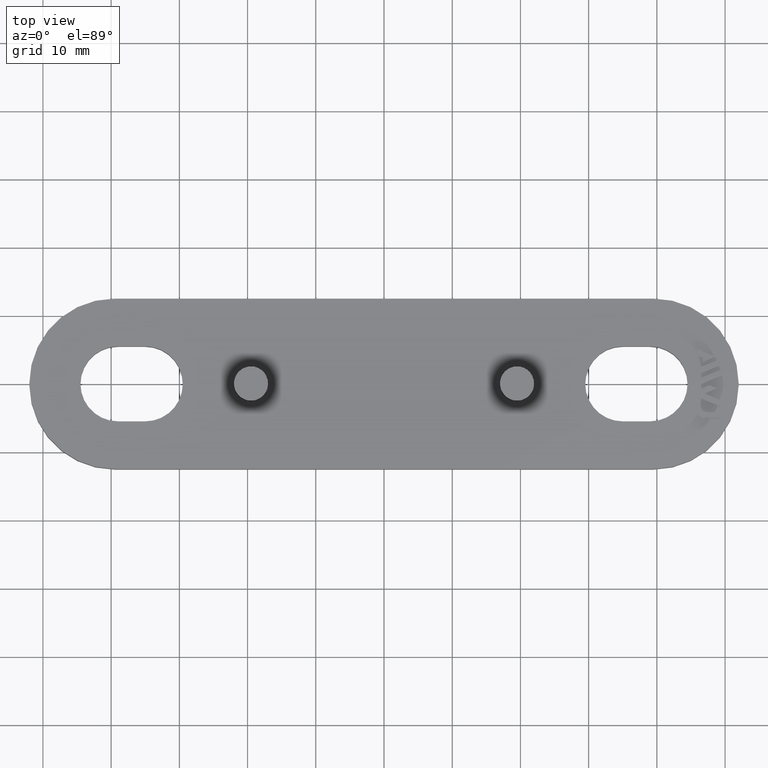
[diagram: clean part render]
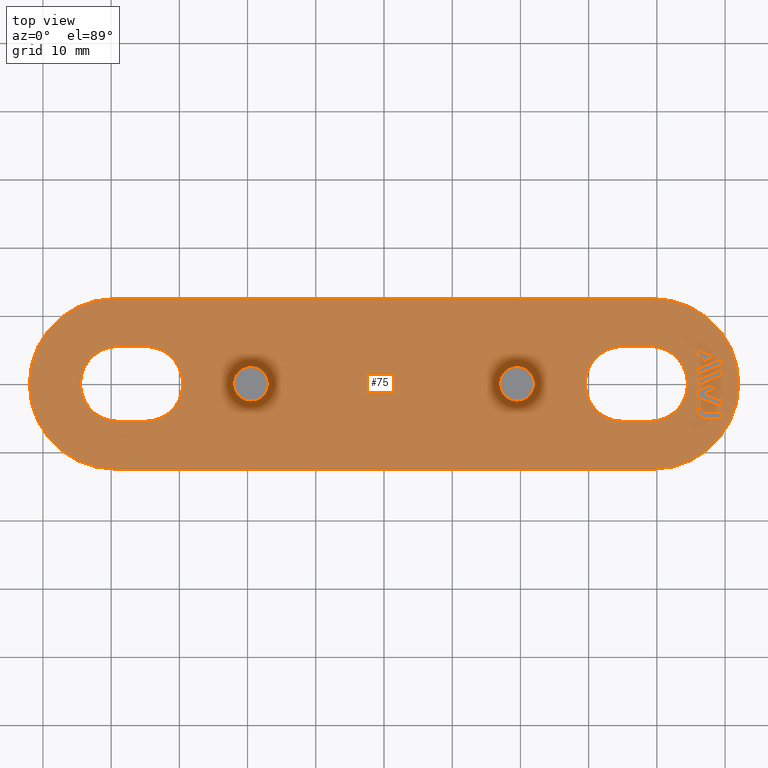
[diagram: same view with one face highlighted and labeled with its STEP entity id]
A machine part, top view. The second image highlights one B-rep face of the part: STEP entity #75.
In plain terms, the highlighted planar face has unit normal (0, -0, -1).
Its self-contained STEP definition (entity closure, byte-faithful):
#75 = ADVANCED_FACE( '', ( #428, #429, #430, #431, #432, #433, #434, #435, #436, #437 ), #438, .F. );
#428 = FACE_BOUND( '', #1194, .T. );
#429 = FACE_BOUND( '', #1195, .T. );
#430 = FACE_BOUND( '', #1196, .T. );
#431 = FACE_OUTER_BOUND( '', #1197, .T. );
#432 = FACE_BOUND( '', #1198, .T. );
#433 = FACE_BOUND( '', #1199, .T. );
#434 = FACE_BOUND( '', #1200, .T. );
#435 = FACE_BOUND( '', #1201, .T. );
#436 = FACE_BOUND( '', #1202, .T. );
#437 = FACE_BOUND( '', #1203, .T. );
#438 = PLANE( '', #1204 );
#1194 = EDGE_LOOP( '', ( #1960, #1961, #1962, #1963, #1964, #1965, #1966 ) );
#1195 = EDGE_LOOP( '', ( #1967, #1968, #1969, #1970 ) );
#1196 = EDGE_LOOP( '', ( #1971, #1972, #1973, #1974, #1975, #1976 ) );
#1197 = EDGE_LOOP( '', ( #1977, #1978, #1979, #1980, #1981, #1982 ) );
#1198 = EDGE_LOOP( '', ( #1983, #1984, #1985, #1986, #1987, #1988 ) );
#1199 = EDGE_LOOP( '', ( #1989 ) );
#1200 = EDGE_LOOP( '', ( #1990 ) );
#1201 = EDGE_LOOP( '', ( #1991, #1992, #1993, #1994, #1995 ) );
#1202 = EDGE_LOOP( '', ( #1996, #1997, #1998, #1999 ) );
#1203 = EDGE_LOOP( '', ( #2000, #2001, #2002, #2003, #2004, #2005, #2006, #2007 ) );
#1204 = AXIS2_PLACEMENT_3D( '', #2008, #2009, #2010 );
#1960 = ORIENTED_EDGE( '', *, *, #4792, .F. );
#1961 = ORIENTED_EDGE( '', *, *, #4793, .F. );
#1962 = ORIENTED_EDGE( '', *, *, #4794, .F. );
#1963 = ORIENTED_EDGE( '', *, *, #4795, .F. );
#1964 = ORIENTED_EDGE( '', *, *, #4796, .F. );
#1965 = ORIENTED_EDGE( '', *, *, #4797, .F. );
#1966 = ORIENTED_EDGE( '', *, *, #4798, .F. );
#1967 = ORIENTED_EDGE( '', *, *, #4799, .F. );
#1968 = ORIENTED_EDGE( '', *, *, #4800, .F. );
#1969 = ORIENTED_EDGE( '', *, *, #4801, .F. );
#1970 = ORIENTED_EDGE( '', *, *, #4802, .F. );
#1971 = ORIENTED_EDGE( '', *, *, #4803, .F. );
#1972 = ORIENTED_EDGE( '', *, *, #4804, .F. );
#1973 = ORIENTED_EDGE( '', *, *, #4805, .F. );
#1974 = ORIENTED_EDGE( '', *, *, #4806, .F. );
#1975 = ORIENTED_EDGE( '', *, *, #4807, .F. );
#1976 = ORIENTED_EDGE( '', *, *, #4808, .F. );
#1977 = ORIENTED_EDGE( '', *, *, #4809, .F. );
#1978 = ORIENTED_EDGE( '', *, *, #4810, .F. );
#1979 = ORIENTED_EDGE( '', *, *, #4811, .F. );
#1980 = ORIENTED_EDGE( '', *, *, #4812, .F. );
#1981 = ORIENTED_EDGE( '', *, *, #4813, .F. );
#1982 = ORIENTED_EDGE( '', *, *, #4814, .F. );
#1983 = ORIENTED_EDGE( '', *, *, #4815, .F. );
#1984 = ORIENTED_EDGE( '', *, *, #4816, .F. );
#1985 = ORIENTED_EDGE( '', *, *, #4817, .F. );
#1986 = ORIENTED_EDGE( '', *, *, #4818, .F. );
#1987 = ORIENTED_EDGE( '', *, *, #4819, .F. );
#1988 = ORIENTED_EDGE( '', *, *, #4820, .F. );
#1989 = ORIENTED_EDGE( '', *, *, #4821, .T. );
#1990 = ORIENTED_EDGE( '', *, *, #4822, .T. );
#1991 = ORIENTED_EDGE( '', *, *, #4823, .F. );
#1992 = ORIENTED_EDGE( '', *, *, #4824, .F. );
#1993 = ORIENTED_EDGE( '', *, *, #4825, .F. );
#1994 = ORIENTED_EDGE( '', *, *, #4826, .F. );
#1995 = ORIENTED_EDGE( '', *, *, #4827, .F. );
#1996 = ORIENTED_EDGE( '', *, *, #4828, .F. );
#1997 = ORIENTED_EDGE( '', *, *, #4829, .F. );
#1998 = ORIENTED_EDGE( '', *, *, #4830, .F. );
#1999 = ORIENTED_EDGE( '', *, *, #4831, .F. );
#2000 = ORIENTED_EDGE( '', *, *, #4832, .F. );
#2001 = ORIENTED_EDGE( '', *, *, #4833, .F. );
#2002 = ORIENTED_EDGE( '', *, *, #4834, .F. );
#2003 = ORIENTED_EDGE( '', *, *, #4835, .F. );
#2004 = ORIENTED_EDGE( '', *, *, #4836, .F. );
#2005 = ORIENTED_EDGE( '', *, *, #4837, .F. );
#2006 = ORIENTED_EDGE( '', *, *, #4838, .F. );
#2007 = ORIENTED_EDGE( '', *, *, #4839, .F. );
#2008 = CARTESIAN_POINT( '', ( 39.5000000000000, -3.16329536349802E-015, 5.00000000000000 ) );
#2009 = DIRECTION( '', ( 0.000000000000000, -6.12303176911189E-017, -1.00000000000000 ) );
#2010 = DIRECTION( '', ( 0.000000000000000, -1.00000000000000, 6.12303176911189E-017 ) );
#4792 = EDGE_CURVE( '', #5680, #5681, #5682, .T. );
#4793 = EDGE_CURVE( '', #5683, #5680, #5684, .T. );
#4794 = EDGE_CURVE( '', #5685, #5683, #5686, .T. );
#4795 = EDGE_CURVE( '', #5687, #5685, #5688, .T. );
#4796 = EDGE_CURVE( '', #5689, #5687, #5690, .T. );
#4797 = EDGE_CURVE( '', #5691, #5689, #5692, .T. );
#4798 = EDGE_CURVE( '', #5681, #5691, #5693, .T. );
#4799 = EDGE_CURVE( '', #5694, #5695, #5696, .T. );
#4800 = EDGE_CURVE( '', #5697, #5694, #5698, .T. );
#4801 = EDGE_CURVE( '', #5699, #5697, #5700, .T. );
#4802 = EDGE_CURVE( '', #5695, #5699, #5701, .T. );
#4803 = EDGE_CURVE( '', #5702, #5703, #5704, .T. );
#4804 = EDGE_CURVE( '', #5705, #5702, #5706, .T. );
#4805 = EDGE_CURVE( '', #5707, #5705, #5708, .T. );
#4806 = EDGE_CURVE( '', #5709, #5707, #5710, .T. );
#4807 = EDGE_CURVE( '', #5711, #5709, #5712, .T. );
#4808 = EDGE_CURVE( '', #5703, #5711, #5713, .T. );
#4809 = EDGE_CURVE( '', #5714, #5715, #5716, .T. );
#4810 = EDGE_CURVE( '', #5717, #5714, #5718, .T. );
#4811 = EDGE_CURVE( '', #5719, #5717, #5720, .T. );
#4812 = EDGE_CURVE( '', #5721, #5719, #5722, .T. );
#4813 = EDGE_CURVE( '', #5723, #5721, #5724, .T. );
#4814 = EDGE_CURVE( '', #5715, #5723, #5725, .T. );
#4815 = EDGE_CURVE( '', #5726, #5727, #5728, .T. );
#4816 = EDGE_CURVE( '', #5729, #5726, #5730, .T. );
#4817 = EDGE_CURVE( '', #5731, #5729, #5732, .T. );
#4818 = EDGE_CURVE( '', #5733, #5731, #5734, .T. );
#4819 = EDGE_CURVE( '', #5735, #5733, #5736, .T. );
#4820 = EDGE_CURVE( '', #5727, #5735, #5737, .T. );
#4821 = EDGE_CURVE( '', #5738, #5738, #5739, .T. );
#4822 = EDGE_CURVE( '', #5740, #5740, #5741, .T. );
#4823 = EDGE_CURVE( '', #5742, #5743, #5744, .T. );
#4824 = EDGE_CURVE( '', #5745, #5742, #5746, .T. );
#4825 = EDGE_CURVE( '', #5747, #5745, #5748, .T. );
#4826 = EDGE_CURVE( '', #5749, #5747, #5750, .T. );
#4827 = EDGE_CURVE( '', #5743, #5749, #5751, .T. );
#4828 = EDGE_CURVE( '', #5752, #5753, #5754, .T. );
#4829 = EDGE_CURVE( '', #5755, #5752, #5756, .T. );
#4830 = EDGE_CURVE( '', #5757, #5755, #5758, .T. );
#4831 = EDGE_CURVE( '', #5753, #5757, #5759, .T. );
#4832 = EDGE_CURVE( '', #5760, #5761, #5762, .T. );
#4833 = EDGE_CURVE( '', #5763, #5760, #5764, .T. );
#4834 = EDGE_CURVE( '', #5765, #5763, #5766, .T. );
#4835 = EDGE_CURVE( '', #5767, #5765, #5768, .T. );
#4836 = EDGE_CURVE( '', #5769, #5767, #5770, .T. );
#4837 = EDGE_CURVE( '', #5771, #5769, #5772, .T. );
#4838 = EDGE_CURVE( '', #5773, #5771, #5774, .T. );
#4839 = EDGE_CURVE( '', #5761, #5773, #5775, .T. );
#5680 = VERTEX_POINT( '', #7164 );
#5681 = VERTEX_POINT( '', #7165 );
#5682 = LINE( '', #7166, #7167 );
#5683 = VERTEX_POINT( '', #7168 );
#5684 = LINE( '', #7169, #7170 );
#5685 = VERTEX_POINT( '', #7171 );
#5686 = LINE( '', #7172, #7173 );
#5687 = VERTEX_POINT( '', #7174 );
#5688 = LINE( '', #7175, #7176 );
#5689 = VERTEX_POINT( '', #7177 );
#5690 = LINE( '', #7178, #7179 );
#5691 = VERTEX_POINT( '', #7180 );
#5692 = LINE( '', #7181, #7182 );
#5693 = LINE( '', #7183, #7184 );
#5694 = VERTEX_POINT( '', #7185 );
#5695 = VERTEX_POINT( '', #7186 );
#5696 = LINE( '', #7187, #7188 );
#5697 = VERTEX_POINT( '', #7189 );
#5698 = LINE( '', #7190, #7191 );
#5699 = VERTEX_POINT( '', #7192 );
#5700 = LINE( '', #7193, #7194 );
#5701 = LINE( '', #7195, #7196 );
#5702 = VERTEX_POINT( '', #7197 );
#5703 = VERTEX_POINT( '', #7198 );
#5704 = CIRCLE( '', #7199, 5.50000000000000 );
#5705 = VERTEX_POINT( '', #7200 );
#5706 = CIRCLE( '', #7201, 5.50000000000000 );
#5707 = VERTEX_POINT( '', #7202 );
#5708 = LINE( '', #7203, #7204 );
#5709 = VERTEX_POINT( '', #7205 );
#5710 = CIRCLE( '', #7206, 5.50000000000000 );
#5711 = VERTEX_POINT( '', #7207 );
#5712 = CIRCLE( '', #7208, 5.50000000000000 );
#5713 = LINE( '', #7209, #7210 );
#5714 = VERTEX_POINT( '', #7211 );
#5715 = VERTEX_POINT( '', #7212 );
#5716 = CIRCLE( '', #7213, 12.5000000000000 );
#5717 = VERTEX_POINT( '', #7214 );
#5718 = CIRCLE( '', #7215, 12.5000000000000 );
#5719 = VERTEX_POINT( '', #7216 );
#5720 = LINE( '', #7217, #7218 );
#5721 = VERTEX_POINT( '', #7219 );
#5722 = CIRCLE( '', #7220, 12.5000000000000 );
#5723 = VERTEX_POINT( '', #7221 );
#5724 = CIRCLE( '', #7222, 12.5000000000000 );
#5725 = LINE( '', #7223, #7224 );
#5726 = VERTEX_POINT( '', #7225 );
#5727 = VERTEX_POINT( '', #7226 );
#5728 = CIRCLE( '', #7227, 5.49999999999999 );
#5729 = VERTEX_POINT( '', #7228 );
#5730 = CIRCLE( '', #7229, 5.49999999999999 );
#5731 = VERTEX_POINT( '', #7230 );
#5732 = LINE( '', #7231, #7232 );
#5733 = VERTEX_POINT( '', #7233 );
#5734 = CIRCLE( '', #7234, 5.50000000000000 );
#5735 = VERTEX_POINT( '', #7235 );
#5736 = CIRCLE( '', #7236, 5.49999999999999 );
#5737 = LINE( '', #7237, #7238 );
#5738 = VERTEX_POINT( '', #7239 );
#5739 = CIRCLE( '', #7240, 2.54363766232054 );
#5740 = VERTEX_POINT( '', #7241 );
#5741 = CIRCLE( '', #7242, 2.54363766232055 );
#5742 = VERTEX_POINT( '', #7243 );
#5743 = VERTEX_POINT( '', #7244 );
#5744 = LINE( '', #7245, #7246 );
#5745 = VERTEX_POINT( '', #7247 );
#5746 = LINE( '', #7248, #7249 );
#5747 = VERTEX_POINT( '', #7250 );
#5748 = LINE( '', #7251, #7252 );
#5749 = VERTEX_POINT( '', #7253 );
#5750 = LINE( '', #7254, #7255 );
#5751 = LINE( '', #7256, #7257 );
#5752 = VERTEX_POINT( '', #7258 );
#5753 = VERTEX_POINT( '', #7259 );
#5754 = LINE( '', #7260, #7261 );
#5755 = VERTEX_POINT( '', #7262 );
#5756 = LINE( '', #7263, #7264 );
#5757 = VERTEX_POINT( '', #7265 );
#5758 = LINE( '', #7266, #7267 );
#5759 = LINE( '', #7268, #7269 );
#5760 = VERTEX_POINT( '', #7270 );
#5761 = VERTEX_POINT( '', #7271 );
#5762 = CIRCLE( '', #7272, 1.20000000000001 );
#5763 = VERTEX_POINT( '', #7273 );
#5764 = LINE( '', #7274, #7275 );
#5765 = VERTEX_POINT( '', #7276 );
#5766 = LINE( '', #7277, #7278 );
#5767 = VERTEX_POINT( '', #7279 );
#5768 = LINE( '', #7280, #7281 );
#5769 = VERTEX_POINT( '', #7282 );
#5770 = CIRCLE( '', #7283, 0.800000000000000 );
#5771 = VERTEX_POINT( '', #7284 );
#5772 = LINE( '', #7285, #7286 );
#5773 = VERTEX_POINT( '', #7287 );
#5774 = LINE( '', #7288, #7289 );
#5775 = LINE( '', #7290, #7291 );
#7164 = CARTESIAN_POINT( '', ( 45.9000000000000, -1.94153815900082, 4.99999999999998 ) );
#7165 = CARTESIAN_POINT( '', ( 49.4973661704647, -3.39489558569056, 4.99999999999998 ) );
#7166 = CARTESIAN_POINT( '', ( 45.9000000000000, -1.94153815900082, 4.99999999999997 ) );
#7167 = VECTOR( '', #9456, 1000.00000000000 );
#7168 = CARTESIAN_POINT( '', ( 45.9000000000000, -0.958868987414785, 4.99999999999999 ) );
#7169 = CARTESIAN_POINT( '', ( 45.9000000000000, -0.958868987414786, 4.99999999999998 ) );
#7170 = VECTOR( '', #9457, 1000.00000000000 );
#7171 = CARTESIAN_POINT( '', ( 47.7327570440906, -0.218257757465014, 4.99999999999999 ) );
#7172 = CARTESIAN_POINT( '', ( 47.7327570440906, -0.218257757465008, 4.99999999999999 ) );
#7173 = VECTOR( '', #9458, 1000.00000000000 );
#7174 = CARTESIAN_POINT( '', ( 48.8833737475896, -0.683055647481210, 4.99999999999999 ) );
#7175 = CARTESIAN_POINT( '', ( 48.8833737475896, -0.683055647481214, 4.99999999999999 ) );
#7176 = VECTOR( '', #9459, 1000.00000000000 );
#7177 = CARTESIAN_POINT( '', ( 46.9849571645034, -1.45010139340526, 4.99999999999998 ) );
#7178 = CARTESIAN_POINT( '', ( 46.9849571645034, -1.45010139340526, 4.99999999999999 ) );
#7179 = VECTOR( '', #9460, 1000.00000000000 );
#7180 = CARTESIAN_POINT( '', ( 49.4973661704647, -2.46529980565816, 4.99999999999998 ) );
#7181 = CARTESIAN_POINT( '', ( 49.4973661704647, -2.46529980565816, 4.99999999999998 ) );
#7182 = VECTOR( '', #9461, 1000.00000000000 );
#7183 = CARTESIAN_POINT( '', ( 49.4973661704647, -3.39489558569056, 4.99999999999998 ) );
#7184 = VECTOR( '', #9462, 1000.00000000000 );
#7185 = CARTESIAN_POINT( '', ( 45.9000000000000, 1.30847678860036, 4.99999999999999 ) );
#7186 = CARTESIAN_POINT( '', ( 49.4973661704647, 2.76206261720164, 4.99999999999999 ) );
#7187 = CARTESIAN_POINT( '', ( 45.9000000000000, 1.30847678860035, 4.99999999999999 ) );
#7188 = VECTOR( '', #9463, 1000.00000000000 );
#7189 = CARTESIAN_POINT( '', ( 45.9000000000000, 2.23799443113670, 4.99999999999999 ) );
#7190 = CARTESIAN_POINT( '', ( 45.9000000000000, 2.23799443113670, 4.99999999999999 ) );
#7191 = VECTOR( '', #9464, 1000.00000000000 );
#7192 = CARTESIAN_POINT( '', ( 49.4973661704647, 3.69137590013291, 4.99999999999999 ) );
#7193 = CARTESIAN_POINT( '', ( 49.4973661704647, 3.69137590013291, 4.99999999999999 ) );
#7194 = VECTOR( '', #9465, 1000.00000000000 );
#7195 = CARTESIAN_POINT( '', ( 49.4973661704647, 2.76206261720164, 4.99999999999999 ) );
#7196 = VECTOR( '', #9466, 1000.00000000000 );
#7197 = CARTESIAN_POINT( '', ( -29.5000000000000, 1.17351344890057E-015, 5.00000199993361 ) );
#7198 = CARTESIAN_POINT( '', ( -35.0000000000000, 5.50000000000000, 5.00000199993361 ) );
#7199 = AXIS2_PLACEMENT_3D( '', #9467, #9468, #9469 );
#7200 = CARTESIAN_POINT( '', ( -35.0000000000000, -5.50000000000000, 5.00000199993361 ) );
#7201 = AXIS2_PLACEMENT_3D( '', #9470, #9471, #9472 );
#7202 = CARTESIAN_POINT( '', ( -39.0000000000000, -5.50000000000000, 5.00000199993361 ) );
#7203 = CARTESIAN_POINT( '', ( -39.0000000000000, -5.50000000000000, 5.00000199993361 ) );
#7204 = VECTOR( '', #9473, 1000.00000000000 );
#7205 = CARTESIAN_POINT( '', ( -44.5000000000000, -1.42857176506464E-015, 5.00000199993361 ) );
#7206 = AXIS2_PLACEMENT_3D( '', #9474, #9475, #9476 );
#7207 = CARTESIAN_POINT( '', ( -39.0000000000000, 5.50000000000000, 5.00000199993361 ) );
#7208 = AXIS2_PLACEMENT_3D( '', #9477, #9478, #9479 );
#7209 = CARTESIAN_POINT( '', ( -35.0000000000000, 5.50000000000000, 5.00000199993361 ) );
#7210 = VECTOR( '', #9480, 1000.00000000000 );
#7211 = CARTESIAN_POINT( '', ( 52.0000000000000, 3.77559854040921E-015, 5.00000000000000 ) );
#7212 = CARTESIAN_POINT( '', ( 39.5000000000000, -12.5000000000000, 5.00000000000000 ) );
#7213 = AXIS2_PLACEMENT_3D( '', #9481, #9482, #9483 );
#7214 = CARTESIAN_POINT( '', ( 39.5000000000000, 12.5000000000000, 5.00000000000000 ) );
#7215 = AXIS2_PLACEMENT_3D( '', #9484, #9485, #9486 );
#7216 = CARTESIAN_POINT( '', ( -39.5000000000000, 12.5000000000000, 5.00000000000000 ) );
#7217 = CARTESIAN_POINT( '', ( -39.5000000000000, 12.5000000000000, 5.00000000000000 ) );
#7218 = VECTOR( '', #9487, 1000.00000000000 );
#7219 = CARTESIAN_POINT( '', ( -52.0000000000000, -4.89801883947483E-015, 5.00000000000000 ) );
#7220 = AXIS2_PLACEMENT_3D( '', #9488, #9489, #9490 );
#7221 = CARTESIAN_POINT( '', ( -39.5000000000000, -12.5000000000000, 5.00000000000000 ) );
#7222 = AXIS2_PLACEMENT_3D( '', #9491, #9492, #9493 );
#7223 = CARTESIAN_POINT( '', ( 39.5000000000000, -12.5000000000000, 5.00000000000000 ) );
#7224 = VECTOR( '', #9494, 1000.00000000000 );
#7225 = CARTESIAN_POINT( '', ( 44.5000000000000, 1.41839397024176E-014, 5.00000499993358 ) );
#7226 = CARTESIAN_POINT( '', ( 39.0000000000000, 5.50000000000001, 5.00000499993358 ) );
#7227 = AXIS2_PLACEMENT_3D( '', #9495, #9496, #9497 );
#7228 = CARTESIAN_POINT( '', ( 39.0000000000000, -5.49999999999998, 5.00000499993358 ) );
#7229 = AXIS2_PLACEMENT_3D( '', #9498, #9499, #9500 );
#7230 = CARTESIAN_POINT( '', ( 35.0000000000000, -5.49999999999998, 5.00000499993358 ) );
#7231 = CARTESIAN_POINT( '', ( 35.0000000000000, -5.49999999999998, 5.00000499993358 ) );
#7232 = VECTOR( '', #9501, 1000.00000000000 );
#7233 = CARTESIAN_POINT( '', ( 29.5000000000000, 1.24492162264408E-014, 5.00000499993358 ) );
#7234 = AXIS2_PLACEMENT_3D( '', #9502, #9503, #9504 );
#7235 = CARTESIAN_POINT( '', ( 35.0000000000000, 5.50000000000001, 5.00000499993358 ) );
#7236 = AXIS2_PLACEMENT_3D( '', #9505, #9506, #9507 );
#7237 = CARTESIAN_POINT( '', ( 39.0000000000000, 5.50000000000001, 5.00000499993358 ) );
#7238 = VECTOR( '', #9508, 1000.00000000000 );
#7239 = CARTESIAN_POINT( '', ( -19.5000000000000, 2.54363766232054, 5.00000000000000 ) );
#7240 = AXIS2_PLACEMENT_3D( '', #9509, #9510, #9511 );
#7241 = CARTESIAN_POINT( '', ( 19.5000000000000, 2.54363766232055, 5.00000000000000 ) );
#7242 = AXIS2_PLACEMENT_3D( '', #9512, #9513, #9514 );
#7243 = CARTESIAN_POINT( '', ( 45.9000000000000, 4.13597825270627, 4.99999999999998 ) );
#7244 = CARTESIAN_POINT( '', ( 46.7308540273209, 3.80004712542054, 4.99999999999998 ) );
#7245 = CARTESIAN_POINT( '', ( 45.9000000000000, 4.13597825270627, 4.99999999999998 ) );
#7246 = VECTOR( '', #9515, 1000.00000000000 );
#7247 = CARTESIAN_POINT( '', ( 45.9000000000000, 5.06529153563753, 4.99999999999999 ) );
#7248 = CARTESIAN_POINT( '', ( 45.9000000000000, 5.06529153563753, 4.99999999999998 ) );
#7249 = VECTOR( '', #9516, 1000.00000000000 );
#7250 = CARTESIAN_POINT( '', ( 48.5972101947166, 3.97568819540701, 4.99999999999998 ) );
#7251 = CARTESIAN_POINT( '', ( 48.5972101947166, 3.97568819540700, 4.99999999999999 ) );
#7252 = VECTOR( '', #9517, 1000.00000000000 );
#7253 = CARTESIAN_POINT( '', ( 46.7308540273209, 3.22197991900249, 4.99999999999998 ) );
#7254 = CARTESIAN_POINT( '', ( 46.7308540273209, 3.22197991900249, 4.99999999999998 ) );
#7255 = VECTOR( '', #9518, 1000.00000000000 );
#7256 = CARTESIAN_POINT( '', ( 46.7308540273209, 3.80004712542054, 4.99999999999998 ) );
#7257 = VECTOR( '', #9519, 1000.00000000000 );
#7258 = CARTESIAN_POINT( '', ( 45.9000000000000, -0.290000000000032, 4.99999999999998 ) );
#7259 = CARTESIAN_POINT( '', ( 49.4973661704647, 1.16358582860125, 4.99999999999999 ) );
#7260 = CARTESIAN_POINT( '', ( 45.9000000000000, -0.290000000000030, 4.99999999999998 ) );
#7261 = VECTOR( '', #9520, 1000.00000000000 );
#7262 = CARTESIAN_POINT( '', ( 45.9000000000000, 0.639583758879127, 4.99999999999999 ) );
#7263 = CARTESIAN_POINT( '', ( 45.9000000000000, 0.639583758879125, 4.99999999999998 ) );
#7264 = VECTOR( '', #9521, 1000.00000000000 );
#7265 = CARTESIAN_POINT( '', ( 49.4973661704647, 2.09316958748041, 4.99999999999999 ) );
#7266 = CARTESIAN_POINT( '', ( 49.4973661704647, 2.09316958748041, 4.99999999999999 ) );
#7267 = VECTOR( '', #9522, 1000.00000000000 );
#7268 = CARTESIAN_POINT( '', ( 49.4973661704647, 1.16358582860125, 4.99999999999999 ) );
#7269 = VECTOR( '', #9523, 1000.00000000000 );
#7270 = CARTESIAN_POINT( '', ( 45.9000000000000, -3.87288028181887, 4.99999999999998 ) );
#7271 = CARTESIAN_POINT( '', ( 47.1000000000000, -5.07288028181887, 4.99999999999998 ) );
#7272 = AXIS2_PLACEMENT_3D( '', #9524, #9525, #9526 );
#7273 = CARTESIAN_POINT( '', ( 45.9000000000000, -2.61040714641558, 4.99999999999998 ) );
#7274 = CARTESIAN_POINT( '', ( 45.9000000000000, -2.61040714641557, 4.99999999999998 ) );
#7275 = VECTOR( '', #9527, 1000.00000000000 );
#7276 = CARTESIAN_POINT( '', ( 46.4231249674404, -2.82176335265064, 4.99999999999998 ) );
#7277 = CARTESIAN_POINT( '', ( 46.4231249674404, -2.82176335265064, 4.99999999999998 ) );
#7278 = VECTOR( '', #9528, 1000.00000000000 );
#7279 = CARTESIAN_POINT( '', ( 46.4231249674404, -3.33274195062400, 4.99999999999998 ) );
#7280 = CARTESIAN_POINT( '', ( 46.4231249674404, -3.33274195062400, 4.99999999999998 ) );
#7281 = VECTOR( '', #9529, 1000.00000000000 );
#7282 = CARTESIAN_POINT( '', ( 47.2231249674404, -4.13274195062400, 4.99999999999998 ) );
#7283 = AXIS2_PLACEMENT_3D( '', #9530, #9531, #9532 );
#7284 = CARTESIAN_POINT( '', ( 49.4973661704647, -4.13274195062400, 4.99999999999998 ) );
#7285 = CARTESIAN_POINT( '', ( 49.4973661704647, -4.13274195062400, 4.99999999999998 ) );
#7286 = VECTOR( '', #9533, 1000.00000000000 );
#7287 = CARTESIAN_POINT( '', ( 49.4973661704647, -5.07288028181887, 4.99999999999998 ) );
#7288 = CARTESIAN_POINT( '', ( 49.4973661704647, -5.07288028181887, 4.99999999999998 ) );
#7289 = VECTOR( '', #9534, 1000.00000000000 );
#7290 = CARTESIAN_POINT( '', ( 47.1000000000000, -5.07288028181887, 4.99999999999998 ) );
#7291 = VECTOR( '', #9535, 1000.00000000000 );
#9456 = DIRECTION( '', ( 0.927190376050330, -0.374590451773198, -7.97084536518423E-017 ) );
#9457 = DIRECTION( '', ( -3.06151588455594E-016, -1.00000000000000, -6.12303176911189E-017 ) );
#9458 = DIRECTION( '', ( -0.927161130553612, -0.374662832411421, 3.38296463190489E-017 ) );
#9459 = DIRECTION( '', ( -0.927206645422846, 0.374550179126525, 7.97069839237404E-017 ) );
#9460 = DIRECTION( '', ( 0.927177805503197, 0.374621565025663, -3.38331941466497E-017 ) );
#9461 = DIRECTION( '', ( -0.927168564368796, 0.374644435760503, 7.97104235723454E-017 ) );
#9462 = DIRECTION( '', ( 3.06151588455594E-016, 1.00000000000000, 6.12303176911187E-017 ) );
#9463 = DIRECTION( '', ( 0.927169929060563, 0.374641058409019, -3.38315182835092E-017 ) );
#9464 = DIRECTION( '', ( -3.06151588455594E-016, -1.00000000000000, -6.12303176911189E-017 ) );
#9465 = DIRECTION( '', ( -0.927188223823227, -0.374595778945159, 3.38354109535961E-017 ) );
#9466 = DIRECTION( '', ( 3.06151588455594E-016, 1.00000000000000, 6.12303176911189E-017 ) );
#9467 = CARTESIAN_POINT( '', ( -35.0000000000000, -1.42857176506464E-015, 5.00000199993361 ) );
#9468 = DIRECTION( '', ( 0.000000000000000, 6.12303176911189E-017, 1.00000000000000 ) );
#9469 = DIRECTION( '', ( 5.78241158658936E-017, -1.00000000000000, 6.12303176911189E-017 ) );
#9470 = CARTESIAN_POINT( '', ( -35.0000000000000, -4.89801871701826E-015, 5.00000199993361 ) );
#9471 = DIRECTION( '', ( 0.000000000000000, 6.12303176911189E-017, 1.00000000000000 ) );
#9472 = DIRECTION( '', ( 5.78241158658936E-017, -1.00000000000000, 6.12303176911189E-017 ) );
#9473 = DIRECTION( '', ( 1.00000000000000, 5.78241158658936E-017, -3.54058898467673E-033 ) );
#9474 = CARTESIAN_POINT( '', ( -39.0000000000000, -2.29593350305305E-015, 5.00000199993361 ) );
#9475 = DIRECTION( '', ( 7.23811190250422E-049, 6.12303176911189E-017, 1.00000000000000 ) );
#9476 = DIRECTION( '', ( 5.78241158658936E-017, -1.00000000000000, 6.12303176911189E-017 ) );
#9477 = CARTESIAN_POINT( '', ( -39.0000000000000, -1.42857176506464E-015, 5.00000199993361 ) );
#9478 = DIRECTION( '', ( 0.000000000000000, 6.12303176911189E-017, 1.00000000000000 ) );
#9479 = DIRECTION( '', ( 5.78241158658936E-017, -1.00000000000000, 6.12303176911189E-017 ) );
#9480 = DIRECTION( '', ( -1.00000000000000, -5.78241158658936E-017, 3.54058898467673E-033 ) );
#9481 = CARTESIAN_POINT( '', ( 39.5000000000000, -3.16329536349802E-015, 5.00000000000000 ) );
#9482 = DIRECTION( '', ( 0.000000000000000, -6.12303176911189E-017, -1.00000000000000 ) );
#9483 = DIRECTION( '', ( 0.000000000000000, 1.00000000000000, -6.12303176911189E-017 ) );
#9484 = CARTESIAN_POINT( '', ( 39.5000000000000, 3.77559854040921E-015, 5.00000000000000 ) );
#9485 = DIRECTION( '', ( 0.000000000000000, -6.12303176911189E-017, -1.00000000000000 ) );
#9486 = DIRECTION( '', ( 0.000000000000000, 1.00000000000000, -6.12303176911189E-017 ) );
#9487 = DIRECTION( '', ( 1.00000000000000, 0.000000000000000, 0.000000000000000 ) );
#9488 = CARTESIAN_POINT( '', ( -39.5000000000000, 3.77559854040921E-015, 5.00000000000000 ) );
#9489 = DIRECTION( '', ( 0.000000000000000, -6.12303176911189E-017, -1.00000000000000 ) );
#9490 = DIRECTION( '', ( 0.000000000000000, 1.00000000000000, -6.12303176911189E-017 ) );
#9491 = CARTESIAN_POINT( '', ( -39.5000000000000, -1.35716362193589E-014, 5.00000000000000 ) );
#9492 = DIRECTION( '', ( 0.000000000000000, -6.12303176911189E-017, -1.00000000000000 ) );
#9493 = DIRECTION( '', ( 0.000000000000000, 1.00000000000000, -6.12303176911189E-017 ) );
#9494 = DIRECTION( '', ( -1.00000000000000, 0.000000000000000, 0.000000000000000 ) );
#9495 = CARTESIAN_POINT( '', ( 39.0000000000000, 1.24492162264408E-014, 5.00000499993358 ) );
#9496 = DIRECTION( '', ( 1.44762238050085E-048, 6.12303176911189E-017, 1.00000000000000 ) );
#9497 = DIRECTION( '', ( 1.15648231731787E-016, -1.00000000000000, 6.12303176911189E-017 ) );
#9498 = CARTESIAN_POINT( '', ( 39.0000000000000, 1.33165779644292E-014, 5.00000499993358 ) );
#9499 = DIRECTION( '', ( 1.44762238050085E-048, 6.12303176911189E-017, 1.00000000000000 ) );
#9500 = DIRECTION( '', ( 1.15648231731787E-016, -1.00000000000000, 6.12303176911189E-017 ) );
#9501 = DIRECTION( '', ( 1.00000000000000, 1.15648231731787E-016, -7.08117796935345E-033 ) );
#9502 = CARTESIAN_POINT( '', ( 35.0000000000000, 1.24492162264408E-014, 5.00000499993358 ) );
#9503 = DIRECTION( '', ( 1.44762238050085E-048, 6.12303176911189E-017, 1.00000000000000 ) );
#9504 = DIRECTION( '', ( 1.15648231731787E-016, -1.00000000000000, 6.12303176911189E-017 ) );
#9505 = CARTESIAN_POINT( '', ( 35.0000000000000, 1.15818544884524E-014, 5.00000499993358 ) );
#9506 = DIRECTION( '', ( 0.000000000000000, 6.12303176911189E-017, 1.00000000000000 ) );
#9507 = DIRECTION( '', ( 1.15648231731787E-016, -1.00000000000000, 6.12303176911189E-017 ) );
#9508 = DIRECTION( '', ( -1.00000000000000, -1.15648231731787E-016, 7.08117796935345E-033 ) );
#9509 = CARTESIAN_POINT( '', ( -19.5000000000000, -1.26594156164839E-015, 5.00000000000000 ) );
#9510 = DIRECTION( '', ( 0.000000000000000, -6.12303176911189E-017, -1.00000000000000 ) );
#9511 = DIRECTION( '', ( 0.000000000000000, 1.00000000000000, -6.12303176911189E-017 ) );
#9512 = CARTESIAN_POINT( '', ( 19.5000000000000, 2.42034582480233E-015, 5.00000000000000 ) );
#9513 = DIRECTION( '', ( 0.000000000000000, -6.12303176911189E-017, -1.00000000000000 ) );
#9514 = DIRECTION( '', ( 0.000000000000000, 1.00000000000000, -6.12303176911189E-017 ) );
#9515 = DIRECTION( '', ( 0.927089140205383, -0.374840934415179, -7.97175920806390E-017 ) );
#9516 = DIRECTION( '', ( -2.50640437224336E-016, -1.00000000000000, -6.12303176911189E-017 ) );
#9517 = DIRECTION( '', ( -0.927200607094025, 0.374565126786346, 7.97075294449078E-017 ) );
#9518 = DIRECTION( '', ( 0.927243990558706, 0.374457717202846, -3.38472791328689E-017 ) );
#9519 = DIRECTION( '', ( -3.06151588455594E-016, -1.00000000000000, -6.12303176911189E-017 ) );
#9520 = DIRECTION( '', ( 0.927169929060563, 0.374641058409019, -3.38315182835091E-017 ) );
#9521 = DIRECTION( '', ( -5.28196193380626E-016, -1.00000000000000, -6.12303176911189E-017 ) );
#9522 = DIRECTION( '', ( -0.927169929060563, -0.374641058409019, 3.38315182835093E-017 ) );
#9523 = DIRECTION( '', ( 5.28196193380626E-016, 1.00000000000000, 6.12303176911189E-017 ) );
#9524 = CARTESIAN_POINT( '', ( 47.1000000000000, -3.87288028181887, 4.99999999999998 ) );
#9525 = DIRECTION( '', ( -5.11477260050508E-015, -1.41273286936514E-015, 1.00000000000000 ) );
#9526 = DIRECTION( '', ( -1.00000000000000, 1.02895303677927E-015, -5.11477260050507E-015 ) );
#9527 = DIRECTION( '', ( -3.06151588455594E-016, -1.00000000000000, -6.12303176911189E-017 ) );
#9528 = DIRECTION( '', ( -0.927183854566787, 0.374606593415912, 7.97090426972448E-017 ) );
#9529 = DIRECTION( '', ( 3.06151588455594E-016, 1.00000000000000, 6.12303176911187E-017 ) );
#9530 = CARTESIAN_POINT( '', ( 47.2231249674404, -3.33274195062400, 4.99999999999998 ) );
#9531 = DIRECTION( '', ( 8.00597839379977E-015, 1.41273286936514E-015, -1.00000000000000 ) );
#9532 = DIRECTION( '', ( -3.06151588455595E-016, -1.00000000000000, -1.41273286936514E-015 ) );
#9533 = DIRECTION( '', ( -1.00000000000000, 3.66866910114783E-016, 6.12303176911189E-017 ) );
#9534 = DIRECTION( '', ( 3.06151588455594E-016, 1.00000000000000, 6.12303176911189E-017 ) );
#9535 = DIRECTION( '', ( 1.00000000000000, -3.66866910114783E-016, -6.12303176911188E-017 ) );